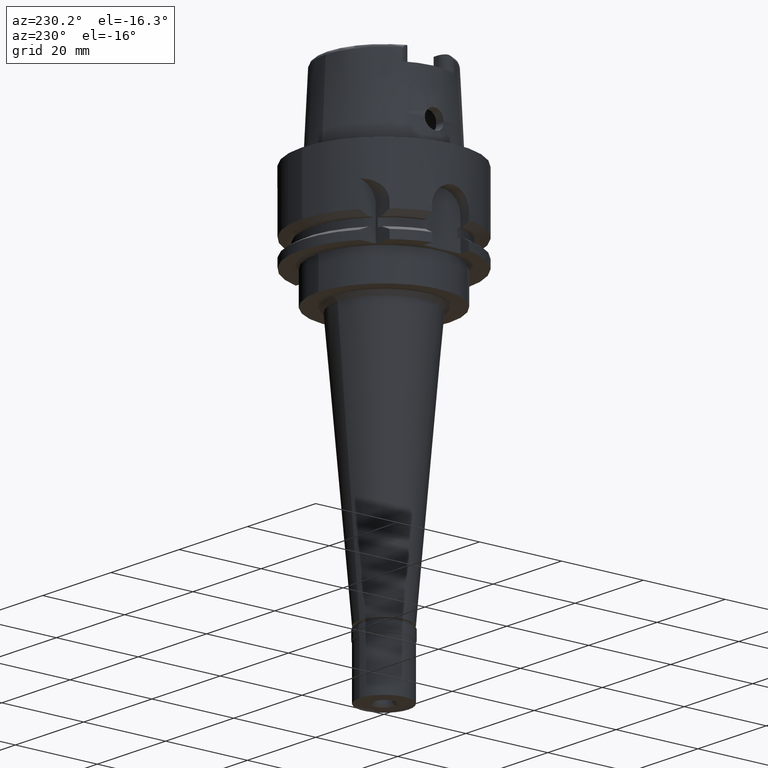
[diagram: clean part render]
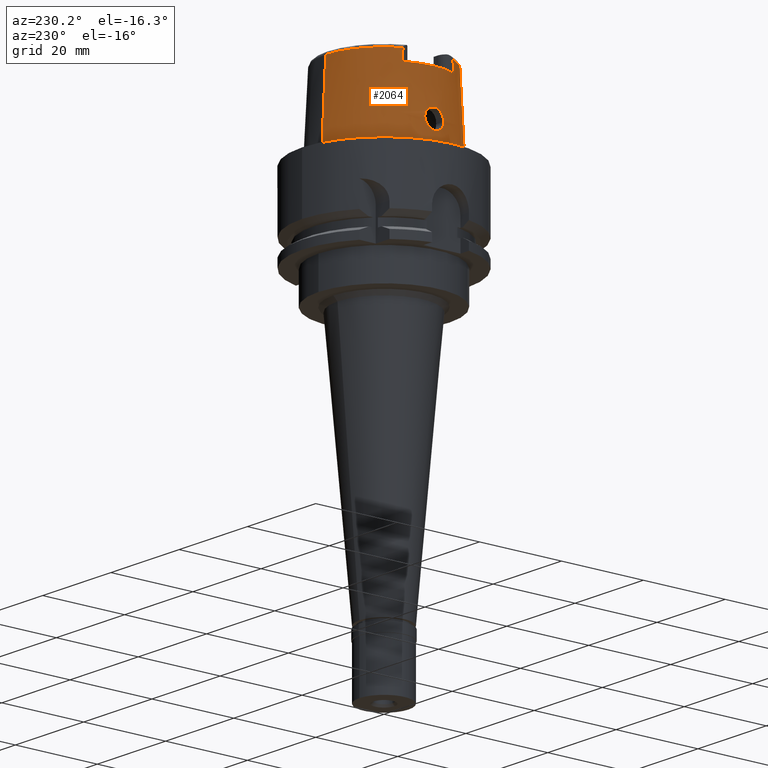
[diagram: same view with one face highlighted and labeled with its STEP entity id]
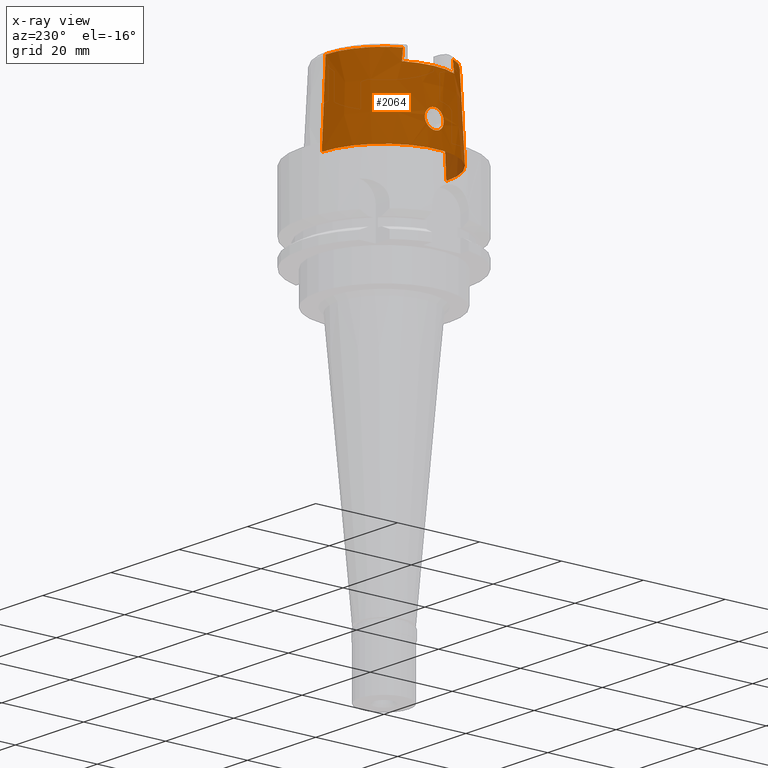
[diagram: x-ray of the same camera — body ghosted, the highlighted face saturated]
A machine part, auxiliary view. The second image highlights one B-rep face of the part: STEP entity #2064.
The next image is the same camera in x-ray: the body ghosted, the highlighted face saturated — about 3% of this face is hidden behind the body in this view.
In plain terms, the highlighted conical surface has half-angle 2.862 deg.
Its self-contained STEP definition (entity closure, byte-faithful):
#2 = CARTESIAN_POINT ( 'NONE',  ( -14.96041458189863427, -1.107509690461690566, 3.978604865375212629 ) ) ;
#11 = CARTESIAN_POINT ( 'NONE',  ( -14.87749218136226759, 1.718132585049722882, 4.470121341656493996 ) ) ;
#25 = CARTESIAN_POINT ( 'NONE',  ( -14.83301012793230456, -1.951767724873916032, 4.780862655706166642 ) ) ;
#34 = CARTESIAN_POINT ( 'NONE',  ( -14.85803083640703903, 1.827167622685256232, 4.601003855080397109 ) ) ;
#50 = CARTESIAN_POINT ( 'NONE',  ( -14.89471404418927136, -1.614094943802227622, 4.361467967923155165 ) ) ;
#80 = CARTESIAN_POINT ( 'NONE',  ( -14.74732491376772714, -1.310495397155849284, 7.890480132683989289 ) ) ;
#196 = FACE_BOUND ( 'NONE', #4268, .T. ) ;
#246 = ORIENTED_EDGE ( 'NONE', *, *, #3690, .T. ) ;
#290 = CARTESIAN_POINT ( 'NONE',  ( -14.70734817586817655, 2.271746088863330737, 6.367127251327319826 ) ) ;
#322 = AXIS2_PLACEMENT_3D ( 'NONE', #1512, #635, #2250 ) ;
#332 = CARTESIAN_POINT ( 'NONE',  ( -14.78499286951999991, 0.0000000000000000000, 8.300000000000000711 ) ) ;
#339 = CARTESIAN_POINT ( 'NONE',  ( -14.74565403954151321, 1.343146336800612906, 7.868597956633664126 ) ) ;
#365 = CARTESIAN_POINT ( 'NONE',  ( -14.70377313625557214, 2.103638064280352715, 6.930159001028141752 ) ) ;
#375 = CARTESIAN_POINT ( 'NONE',  ( -15.01500049747999910, 0.0000000000000000000, 3.700000000000000178 ) ) ;
#386 = CARTESIAN_POINT ( 'NONE',  ( -14.78969320921247821, 2.134164216452940188, 5.142463497463646505 ) ) ;
#402 = CARTESIAN_POINT ( 'NONE',  ( -14.80014739650948030, -2.094048331063766977, 5.048515350919305256 ) ) ;
#412 = CARTESIAN_POINT ( 'NONE',  ( -14.83975061367414305, 1.919468197011881649, 4.732825426779055711 ) ) ;
#429 = CARTESIAN_POINT ( 'NONE',  ( -14.70267160045466248, -2.191398932926658993, 6.699445077412227612 ) ) ;
#439 = CARTESIAN_POINT ( 'NONE',  ( -15.01500049747999910, 0.0000000000000000000, 3.700000000000000178 ) ) ;
#451 = CARTESIAN_POINT ( 'NONE',  ( -14.98572762005271031, -0.8106357027952464378, 3.847437381246149091 ) ) ;
#453 = CARTESIAN_POINT ( 'NONE',  ( -12.88000032454999833, -6.068407003517999776, 19.23995946240999899 ) ) ;
#459 = CARTESIAN_POINT ( 'NONE',  ( -14.79135050270582497, 2.127983826233955877, 5.127245739479673325 ) ) ;
#474 = CARTESIAN_POINT ( 'NONE',  ( -14.70694486121752576, -2.017265411398730279, 7.114962403468841678 ) ) ;
#488 = CARTESIAN_POINT ( 'NONE',  ( -14.76171650750621289, 2.228155104652778551, 5.424294144519233640 ) ) ;
#503 = VECTOR ( 'NONE', #2454, 1000.000000000000227 ) ;
#610 = VERTEX_POINT ( 'NONE', #1457 ) ;
#611 = CARTESIAN_POINT ( 'NONE',  ( -14.74046648004080495, -1.432591898888917026, 7.799749872950078711 ) ) ;
#620 = EDGE_CURVE ( 'NONE', #2635, #4096, #2295, .T. ) ;
#635 = DIRECTION ( 'NONE',  ( 0.0000000000000000000, 0.0000000000000000000, -1.000000000000000000 ) ) ;
#651 = EDGE_CURVE ( 'NONE', #610, #4196, #1980, .T. ) ;
#654 = CARTESIAN_POINT ( 'NONE',  ( -14.75366952680941957, 1.189841423261309483, 7.968425253464887170 ) ) ;
#676 = CARTESIAN_POINT ( 'NONE',  ( -14.78353173346225091, 0.2845707569074571452, 8.287307448897021089 ) ) ;
#702 = CARTESIAN_POINT ( 'NONE',  ( -14.75793439841027421, 1.102470479435829098, 8.018906386280052700 ) ) ;
#726 = CARTESIAN_POINT ( 'NONE',  ( -14.75091137393725838, 1.243840224947330375, 7.934678171664716118 ) ) ;
#754 = CARTESIAN_POINT ( 'NONE',  ( -14.77914832528898970, 0.5068056629556110249, 8.244735394286548669 ) ) ;
#770 = CARTESIAN_POINT ( 'NONE',  ( -14.71594267452836213, -1.850388315337426537, 7.368495586159012234 ) ) ;
#792 = CARTESIAN_POINT ( 'NONE',  ( -14.71400828171622699, -2.299910476099414680, 6.147207761000280435 ) ) ;
#799 = CIRCLE ( 'NONE', #3765, 14.37497927185999735 ) ;
#818 = CARTESIAN_POINT ( 'NONE',  ( -15.00008664332447417, -0.5828852713583345668, 3.773779262075685814 ) ) ;
#827 = CARTESIAN_POINT ( 'NONE',  ( -14.91244066801042756, 1.505351153533456943, 4.252588956376068374 ) ) ;
#846 = CARTESIAN_POINT ( 'NONE',  ( -14.70331073654289078, -2.224356948014384550, 6.589955054231509735 ) ) ;
#856 = CARTESIAN_POINT ( 'NONE',  ( -14.92964374882900813, 1.377727250135973192, 4.152099788044859352 ) ) ;
#870 = CARTESIAN_POINT ( 'NONE',  ( -14.73129486707547819, -2.293685854544455172, 5.825903656302723554 ) ) ;
#989 = CONICAL_SURFACE ( 'NONE', #4213, 14.71899189528999941, 0.04996004983832824653 ) ;
#994 = ORIENTED_EDGE ( 'NONE', *, *, #3859, .T. ) ;
#1008 = CARTESIAN_POINT ( 'NONE',  ( -12.87999878070000115, 6.104119118174000214, 18.93561176231999710 ) ) ;
#1055 = AXIS2_PLACEMENT_3D ( 'NONE', #3144, #4756, #1133 ) ;
#1078 = CARTESIAN_POINT ( 'NONE',  ( -14.78499286951999991, 0.0000000000000000000, 8.300000000000000711 ) ) ;
#1121 = CARTESIAN_POINT ( 'NONE',  ( -12.88000032454999833, -6.068407003517999776, 19.23995946240999899 ) ) ;
#1125 = ORIENTED_EDGE ( 'NONE', *, *, #1500, .T. ) ;
#1131 = CARTESIAN_POINT ( 'NONE',  ( -14.76521407157798649, 0.9395172586667652759, 8.100284803169182979 ) ) ;
#1133 = DIRECTION ( 'NONE',  ( -0.9046226299953515904, 0.4262134410131772633, 0.0000000000000000000 ) ) ;
#1138 = VERTEX_POINT ( 'NONE', #332 ) ;
#1153 = CARTESIAN_POINT ( 'NONE',  ( -14.72979950944817062, 1.616197659087381222, 7.636457819681862880 ) ) ;
#1161 = B_SPLINE_CURVE_WITH_KNOTS ( 'NONE', 3,
 ( #453, #1193, #4058, #3582, #3979, #4897 ),
 .UNSPECIFIED., .F., .F.,
 ( 4, 1, 1, 4 ),
 ( 0.0000000000000000000, 0.3333333333333000081, 0.6666666666667000474, 1.000000000000000000 ),
 .UNSPECIFIED. ) ;
#1167 = CARTESIAN_POINT ( 'NONE',  ( -14.77564413966109136, -2.187241177542518678, 5.269974566528444093 ) ) ;
#1175 = CARTESIAN_POINT ( 'NONE',  ( -14.89145928255392981, 1.634413554206751940, 4.381726946578535120 ) ) ;
#1191 = CARTESIAN_POINT ( 'NONE',  ( -14.70294728682568852, -2.139558203558785898, 6.844028325287411896 ) ) ;
#1193 = CARTESIAN_POINT ( 'NONE',  ( -12.88000032454999833, -6.104114244044999360, 18.93559193275999775 ) ) ;
#1199 = CARTESIAN_POINT ( 'NONE',  ( -14.97171639177669356, 0.9837343504852352760, 3.920511706067889790 ) ) ;
#1212 = CARTESIAN_POINT ( 'NONE',  ( -14.73220638905807256, -1.575666890426938860, 7.677185280820459923 ) ) ;
#1222 = CARTESIAN_POINT ( 'NONE',  ( -14.97944105019504590, 0.8921053119506339169, 3.880043381326412799 ) ) ;
#1238 = CARTESIAN_POINT ( 'NONE',  ( -15.00363756098055390, -0.5094711109940143201, 3.755892624586468553 ) ) ;
#1268 = CIRCLE ( 'NONE', #4243, 15.20000663301000010 ) ;
#1269 = CARTESIAN_POINT ( 'NONE',  ( -14.91755486759836558, -1.459623245128766067, 4.222021991542344921 ) ) ;
#1304 = DIRECTION ( 'NONE',  ( -0.8960012919965021361, -0.4440514437997010733, 0.0000000000000000000 ) ) ;
#1322 = ORIENTED_EDGE ( 'NONE', *, *, #651, .T. ) ;
#1411 = CARTESIAN_POINT ( 'NONE',  ( 0.0000000000000000000, 1.342457523729000028E-14, 9.619975707600000092 ) ) ;
#1457 = CARTESIAN_POINT ( 'NONE',  ( -12.87999878070000115, 6.068418751391000399, 19.23992119332000073 ) ) ;
#1480 = CARTESIAN_POINT ( 'NONE',  ( -14.72147471989114287, 1.749017143146367470, 7.503194191427275506 ) ) ;
#1500 = EDGE_CURVE ( 'NONE', #2883, #2108, #799, .T. ) ;
#1505 = CARTESIAN_POINT ( 'NONE',  ( -14.74231844505367839, 1.403794281513517372, 7.823475259164830220 ) ) ;
#1512 = CARTESIAN_POINT ( 'NONE',  ( 0.0000000000000000000, 1.459778984583999657E-14, 19.23995141520000018 ) ) ;
#1552 = CARTESIAN_POINT ( 'NONE',  ( -14.73063455539219824, 1.602713651642534209, 7.649666032770297441 ) ) ;
#1565 = CARTESIAN_POINT ( 'NONE',  ( -14.89865944144242960, -1.588802405716379873, 4.336921251810212929 ) ) ;
#1590 = CARTESIAN_POINT ( 'NONE',  ( -14.89617027102329949, -1.604831706992151830, 4.352383782756638730 ) ) ;
#1601 = CARTESIAN_POINT ( 'NONE',  ( -14.84941369911242148, 1.872251541918431128, 4.661939501114270357 ) ) ;
#1617 = CARTESIAN_POINT ( 'NONE',  ( -14.79621642476081789, -2.109491097295356887, 5.083261890887698975 ) ) ;
#1627 = CARTESIAN_POINT ( 'NONE',  ( -14.95163221181676150, 1.187373214480714756, 4.028741076922795372 ) ) ;
#1639 = CARTESIAN_POINT ( 'NONE',  ( -14.72909785634215574, -2.296099598332077552, 5.861536109627839330 ) ) ;
#1649 = CARTESIAN_POINT ( 'NONE',  ( -14.95832567310598371, 1.124067758714641929, 3.992156438771673699 ) ) ;
#1669 = CARTESIAN_POINT ( 'NONE',  ( -14.70427625198845334, -2.078326858682897793, 6.992715896416512145 ) ) ;
#1747 = VERTEX_POINT ( 'NONE', #2943 ) ;
#1749 = CARTESIAN_POINT ( 'NONE',  ( -14.75232085644765512, -1.220180263135357102, 7.951003177243207709 ) ) ;
#1773 = DIRECTION ( 'NONE',  ( 0.0000000000000000000, -1.000000000000000000, 0.0000000000000000000 ) ) ;
#1843 = VERTEX_POINT ( 'NONE', #1121 ) ;
#1873 = CARTESIAN_POINT ( 'NONE',  ( -14.76255221631768855, 1.002229533695717878, 8.071529044002877740 ) ) ;
#1893 = CARTESIAN_POINT ( 'NONE',  ( -14.71330285441949570, 2.292988571698261868, 6.183209826586463898 ) ) ;
#1948 = CARTESIAN_POINT ( 'NONE',  ( -14.73480897677178802, 1.534044326706455186, 7.714410271509759554 ) ) ;
#1976 = EDGE_CURVE ( 'NONE', #3533, #1138, #2803, .T. ) ;
#1980 = CIRCLE ( 'NONE', #1055, 14.23797715756000670 ) ;
#1987 = CARTESIAN_POINT ( 'NONE',  ( -14.70881423316103032, -2.285912213332098819, 6.295257651735497006 ) ) ;
#1999 = CARTESIAN_POINT ( 'NONE',  ( -14.79071581526791235, 2.130359082076787036, 5.133053670990284090 ) ) ;
#2014 = CARTESIAN_POINT ( 'NONE',  ( -14.73834166373888088, -2.283790448478240087, 5.718009694592332437 ) ) ;
#2024 = CARTESIAN_POINT ( 'NONE',  ( -14.71787489719134534, 2.299122695560352092, 6.073328799129370736 ) ) ;
#2046 = CARTESIAN_POINT ( 'NONE',  ( -14.71338817162959600, -1.895836719884105737, 7.304388115873780229 ) ) ;
#2056 = CARTESIAN_POINT ( 'NONE',  ( -14.97820495300442012, 0.9072783066818363995, 3.886492482413884897 ) ) ;
#2064 = ADVANCED_FACE ( 'NONE', ( #3817, #196 ), #989, .T. ) ;
#2070 = CARTESIAN_POINT ( 'NONE',  ( -15.01500049748000443, -0.1431464747803790905, 3.700000000000000178 ) ) ;
#2096 = CARTESIAN_POINT ( 'NONE',  ( -14.99023284682885482, -0.7471964444152333629, 3.824155850300016812 ) ) ;
#2108 = VERTEX_POINT ( 'NONE', #4520 ) ;
#2124 = CARTESIAN_POINT ( 'NONE',  ( -14.76599303090443804, -0.9194935838926336924, 8.108596405372136218 ) ) ;
#2250 = DIRECTION ( 'NONE',  ( -0.001485959642573941343, -0.9999988959613608230, 0.0000000000000000000 ) ) ;
#2269 = CARTESIAN_POINT ( 'NONE',  ( -14.70739681537069288, 2.007619751714770029, 7.124468897007064427 ) ) ;
#2293 = CARTESIAN_POINT ( 'NONE',  ( -14.70328638622466855, 2.122671926936438691, 6.885639201470262982 ) ) ;
#2295 = LINE ( 'NONE', #3913, #4212 ) ;
#2300 = EDGE_CURVE ( 'NONE', #2635, #1843, #4298, .T. ) ;
#2314 = CARTESIAN_POINT ( 'NONE',  ( -14.75629095327162865, 1.136906501859037411, 7.999781480556785951 ) ) ;
#2325 = ORIENTED_EDGE ( 'NONE', *, *, #4524, .T. ) ;
#2366 = CARTESIAN_POINT ( 'NONE',  ( -14.70914376910226551, 1.971110746713771844, 7.187593058879012453 ) ) ;
#2377 = CARTESIAN_POINT ( 'NONE',  ( -14.93061062144148998, -1.362460116016066536, 4.145134587798190218 ) ) ;
#2403 = CARTESIAN_POINT ( 'NONE',  ( -14.72715224085879804, -1.659772000727425700, 7.592255641648031350 ) ) ;
#2414 = CARTESIAN_POINT ( 'NONE',  ( -14.71473684744785615, 2.295620688937709541, 6.146519399888251911 ) ) ;
#2428 = CARTESIAN_POINT ( 'NONE',  ( -14.70277634268941291, -2.150115788262865202, 6.817099734417756629 ) ) ;
#2439 = CARTESIAN_POINT ( 'NONE',  ( -14.77782189591748896, 2.176783564312177344, 5.255414636513733306 ) ) ;
#2454 = DIRECTION ( 'NONE',  ( 0.0000000000000000000, 0.04993926899656212642, -0.9987522562738413434 ) ) ;
#2458 = B_SPLINE_CURVE_WITH_KNOTS ( 'NONE', 3,
 ( #2947, #4638, #3051, #2494, #1008, #2893 ),
 .UNSPECIFIED., .F., .F.,
 ( 4, 1, 1, 4 ),
 ( 0.0000000000000000000, 0.3333333333333000081, 0.6666666666667000474, 1.000000000000000000 ),
 .UNSPECIFIED. ) ;
#2459 = CARTESIAN_POINT ( 'NONE',  ( -14.98146273356237934, -0.8667961342741733466, 3.869572481058396018 ) ) ;
#2483 = CARTESIAN_POINT ( 'NONE',  ( -14.70255555743105980, -2.173498833981903466, 6.753979766132429674 ) ) ;
#2494 = CARTESIAN_POINT ( 'NONE',  ( -12.88000052917000104, 6.174983818887999298, 18.32681562252000163 ) ) ;
#2507 = LINE ( 'NONE', #2930, #503 ) ;
#2520 = DIRECTION ( 'NONE',  ( 0.0000000000000000000, 0.0000000000000000000, 1.000000000000000000 ) ) ;
#2560 = ORIENTED_EDGE ( 'NONE', *, *, #4907, .T. ) ;
#2609 = CARTESIAN_POINT ( 'NONE',  ( 0.0000000000000000000, 14.23797715755999782, 19.23995141520000018 ) ) ;
#2618 = CARTESIAN_POINT ( 'NONE',  ( -14.78499286951999991, 0.0000000000000000000, 8.300000000000000711 ) ) ;
#2635 = VERTEX_POINT ( 'NONE', #3042 ) ;
#2662 = CARTESIAN_POINT ( 'NONE',  ( -14.77732190521679456, 0.5816026469436970103, 8.226627217148395843 ) ) ;
#2687 = CARTESIAN_POINT ( 'NONE',  ( -14.70334933095115559, 2.120024536113907399, 6.891944366616099771 ) ) ;
#2716 = CARTESIAN_POINT ( 'NONE',  ( -14.77403434908685398, 0.6941598961004270540, 8.193097042863200841 ) ) ;
#2760 = ORIENTED_EDGE ( 'NONE', *, *, #2300, .T. ) ;
#2763 = CARTESIAN_POINT ( 'NONE',  ( -14.72943248936429228, 1.622093092273936277, 7.630621332095622655 ) ) ;
#2778 = CARTESIAN_POINT ( 'NONE',  ( -14.76138692316663281, -2.231350359771047120, 5.422168737230678381 ) ) ;
#2792 = CARTESIAN_POINT ( 'NONE',  ( -14.73767527269292721, 2.287789177818445818, 5.719825348901813378 ) ) ;
#2803 = B_SPLINE_CURVE_WITH_KNOTS ( 'NONE', 3,
 ( #375, #2070, #4863, #1238, #818, #5190, #2096, #451, #3997, #4420, #2459, #3681, #2, #4792, #2377, #1269, #3653, #2830, #2805, #1565, #1590, #50, #3176, #3288, #25, #2852, #2886, #4464, #402, #1617, #4494, #1167, #2778, #3201, #2014, #870, #1639, #4440, #4818, #792, #1987, #4399, #846, #429, #2483, #2428, #1191, #4054, #4107, #1669, #474, #2046, #770, #3604, #4084, #5216, #3232, #2403, #3627, #4839, #1212, #3259, #611, #3763, #4607, #80, #1749, #3314, #3416, #3365, #3789, #2124, #4170, #3021, #2618 ),
 .UNSPECIFIED., .F., .F.,
 ( 4, 2, 2, 1, 1, 2, 2, 2, 2, 2, 1, 2, 2, 2, 2, 1, 2, 2, 2, 2, 2, 2, 2, 2, 1, 1, 2, 2, 2, 2, 2, 1, 2, 2, 2, 2, 2, 2, 2, 2, 4 ),
 ( 0.0000000000000000000, 0.06249999999999888978, 0.09374999999999830691, 0.1093749999999979877, 0.1171874999999978073, 0.1210937499999977240, 0.1249999999999976408, 0.1874999999999971134, 0.2187499999999969191, 0.2343749999999968359, 0.2421874999999968081, 0.2460937499999968081, 0.2499999999999968359, 0.3124999999999976130, 0.3437499999999980571, 0.3593749999999982792, 0.3671874999999983347, 0.3749999999999984457, 0.4374999999999989453, 0.4687499999999990008, 0.4843749999999992228, 0.4999999999999994449, 0.5625000000000003331, 0.5937500000000006661, 0.6093750000000008882, 0.6171875000000008882, 0.6210937500000009992, 0.6250000000000009992, 0.6875000000000017764, 0.7187500000000019984, 0.7343750000000019984, 0.7421875000000021094, 0.7460937500000022204, 0.7500000000000022204, 0.7812500000000019984, 0.7968750000000017764, 0.8125000000000016653, 0.8437500000000012212, 0.8593750000000009992, 0.8750000000000008882, 1.000000000000000000 ),
 .UNSPECIFIED. ) ;
#2805 = CARTESIAN_POINT ( 'NONE',  ( -14.90235963870200386, -1.564714987790609024, 4.314022640419379329 ) ) ;
#2816 = CARTESIAN_POINT ( 'NONE',  ( -14.97993164273628430, 0.8860210621168660428, 3.877486852363914771 ) ) ;
#2830 = CARTESIAN_POINT ( 'NONE',  ( -14.90595916085415773, -1.540520483624324477, 4.292000524913938797 ) ) ;
#2839 = CARTESIAN_POINT ( 'NONE',  ( -14.83587665392790811, 1.938143036937287400, 4.761565722162855785 ) ) ;
#2852 = CARTESIAN_POINT ( 'NONE',  ( -14.82452622512353102, -1.990827122709138530, 4.845724523368849290 ) ) ;
#2883 = VERTEX_POINT ( 'NONE', #4015 ) ;
#2886 = CARTESIAN_POINT ( 'NONE',  ( -14.81217354649724882, -2.044581674084780865, 4.945902326578187846 ) ) ;
#2893 = CARTESIAN_POINT ( 'NONE',  ( -12.87999878070000115, 6.068418751391000399, 19.23992119332000073 ) ) ;
#2930 = CARTESIAN_POINT ( 'NONE',  ( 0.0000000000000000000, 14.23797715755999782, 19.23995141520000018 ) ) ;
#2943 = CARTESIAN_POINT ( 'NONE',  ( 0.0000000000000000000, 15.20000663301000010, 0.0000000000000000000 ) ) ;
#2947 = CARTESIAN_POINT ( 'NONE',  ( -12.88000000001000167, 6.383230300259000067, 16.50000000000000000 ) ) ;
#3021 = CARTESIAN_POINT ( 'NONE',  ( -14.78499286951999814, -0.2787745227115523416, 8.299999999999998934 ) ) ;
#3042 = CARTESIAN_POINT ( 'NONE',  ( 0.0000000000000000000, -14.23797715755999782, 19.23995141520000018 ) ) ;
#3051 = CARTESIAN_POINT ( 'NONE',  ( -12.87999997686000064, 6.279941282731999586, 17.41350820122000087 ) ) ;
#3068 = CARTESIAN_POINT ( 'NONE',  ( -14.76871775440795354, 0.8491092902750403404, 8.137566861855864531 ) ) ;
#3088 = CARTESIAN_POINT ( 'NONE',  ( -14.70351136102681266, 2.113536795484791675, 6.907210560451681580 ) ) ;
#3115 = CARTESIAN_POINT ( 'NONE',  ( -14.70451505592953723, 2.079352116352842561, 6.984029928449741575 ) ) ;
#3142 = CARTESIAN_POINT ( 'NONE',  ( -14.76782309395071557, 0.8725508052176742524, 8.128069715560501507 ) ) ;
#3144 = CARTESIAN_POINT ( 'NONE',  ( 0.0000000000000000000, 1.459778984583999657E-14, 19.23995141520000018 ) ) ;
#3176 = CARTESIAN_POINT ( 'NONE',  ( -14.87658351096698794, -1.728334971503363127, 4.474934948854307315 ) ) ;
#3184 = EDGE_LOOP ( 'NONE', ( #246, #1322, #994, #2325, #3531, #2760, #2560, #1125 ) ) ;
#3187 = CARTESIAN_POINT ( 'NONE',  ( -14.77230374071786123, 2.194977426247659125, 5.311812381054796361 ) ) ;
#3201 = CARTESIAN_POINT ( 'NONE',  ( -14.74364721413238755, -2.273652992476068224, 5.644745979789653312 ) ) ;
#3217 = CARTESIAN_POINT ( 'NONE',  ( -14.88834548727817975, 1.653373131380677652, 4.401110745928278334 ) ) ;
#3232 = CARTESIAN_POINT ( 'NONE',  ( -14.72579392470974113, -1.682458830385888282, 7.568491586785876635 ) ) ;
#3243 = CARTESIAN_POINT ( 'NONE',  ( -14.96741182547979854, 1.030313559727948913, 3.943377771252660313 ) ) ;
#3259 = CARTESIAN_POINT ( 'NONE',  ( -14.73547087690553603, -1.519849736209561764, 7.727927485494568316 ) ) ;
#3269 = CARTESIAN_POINT ( 'NONE',  ( -14.79806440533162970, 2.102760206403382348, 5.066039888107483513 ) ) ;
#3288 = CARTESIAN_POINT ( 'NONE',  ( -14.85920818753235295, -1.825618614641882020, 4.592914665587636946 ) ) ;
#3297 = CARTESIAN_POINT ( 'NONE',  ( -14.97632099348223100, 0.9300969524254406595, 3.896335739924747354 ) ) ;
#3314 = CARTESIAN_POINT ( 'NONE',  ( -14.75552486475408109, -1.156821402165017609, 7.989335911426264758 ) ) ;
#3365 = CARTESIAN_POINT ( 'NONE',  ( -14.76164798603651107, -1.023184110399902425, 8.060236441945345831 ) ) ;
#3404 = CARTESIAN_POINT ( 'NONE',  ( 0.0000000000000000000, 1.342457523729000028E-14, 0.0000000000000000000 ) ) ;
#3416 = CARTESIAN_POINT ( 'NONE',  ( -14.76014094699343460, -1.057169249466100691, 8.042992036017905022 ) ) ;
#3452 = ORIENTED_EDGE ( 'NONE', *, *, #1976, .F. ) ;
#3485 = CARTESIAN_POINT ( 'NONE',  ( -14.75231974888976083, 1.216628373133354923, 7.952079831381655417 ) ) ;
#3513 = CARTESIAN_POINT ( 'NONE',  ( -14.70940597086458190, 2.282399008077008240, 6.293435665718750016 ) ) ;
#3531 = ORIENTED_EDGE ( 'NONE', *, *, #620, .F. ) ;
#3533 = VERTEX_POINT ( 'NONE', #5227 ) ;
#3540 = DIRECTION ( 'NONE',  ( 0.0000000000000000000, -0.04993926899656212642, -0.9987522562738413434 ) ) ;
#3567 = CARTESIAN_POINT ( 'NONE',  ( -14.73188704608172905, 1.582365697598638432, 7.669353863450520059 ) ) ;
#3582 = CARTESIAN_POINT ( 'NONE',  ( -12.87999944956999876, -6.279959759208000314, 17.41350767193000237 ) ) ;
#3590 = CARTESIAN_POINT ( 'NONE',  ( -14.88508676602682357, 1.673067574259026857, 4.421560314296320016 ) ) ;
#3604 = CARTESIAN_POINT ( 'NONE',  ( -14.72038452801862896, -1.773814061183719426, 7.464671617826131644 ) ) ;
#3612 = CARTESIAN_POINT ( 'NONE',  ( 0.0000000000000000000, 1.342457523729000028E-14, 16.50000000000000000 ) ) ;
#3614 = CARTESIAN_POINT ( 'NONE',  ( -14.82190601563289967, 2.002884951515852219, 4.868571315790523713 ) ) ;
#3627 = CARTESIAN_POINT ( 'NONE',  ( -14.72807049535695967, -1.644458350030491456, 7.608066496689016134 ) ) ;
#3639 = CARTESIAN_POINT ( 'NONE',  ( -14.87099813437315987, 1.755200651544483570, 4.513156495612226315 ) ) ;
#3653 = CARTESIAN_POINT ( 'NONE',  ( -14.91302397168192151, -1.492048199859994595, 4.249098963751490210 ) ) ;
#3673 = CARTESIAN_POINT ( 'NONE',  ( 0.0000000000000000000, -15.20000663301000010, 1.136868377215999875E-13 ) ) ;
#3681 = CARTESIAN_POINT ( 'NONE',  ( -14.97209495869000762, -0.9854705087906170391, 3.918311370179329067 ) ) ;
#3690 = EDGE_CURVE ( 'NONE', #2108, #610, #2458, .T. ) ;
#3697 = B_SPLINE_CURVE_WITH_KNOTS ( 'NONE', 3,
 ( #1078, #5131, #676, #754, #2662, #2716, #4754, #5179, #3068, #4363, #3142, #4776, #1131, #1873, #702, #2314, #654, #3485, #726, #5078, #5106, #339, #1505, #4288, #1948, #3567, #1552, #1153, #2763, #1480, #4386, #2366, #2269, #3987, #3115, #365, #3088, #2687, #2293, #3912, #4728, #290, #3513, #1893, #2414, #2024, #4070, #4121, #2792, #4010, #488, #3187, #2439, #4908, #4035, #386, #1999, #459, #3269, #4877, #4448, #3614, #5228, #4803, #2839, #4476, #412, #1601, #34, #3639, #11, #3590, #3217, #4830, #1175, #827, #856, #1627, #1649, #3243, #1199, #3297, #2056, #1222, #2816, #5199, #4430, #439 ),
 .UNSPECIFIED., .F., .F.,
 ( 4, 2, 2, 1, 1, 1, 2, 2, 2, 2, 1, 2, 2, 2, 1, 1, 2, 2, 2, 2, 1, 1, 2, 2, 2, 2, 2, 2, 2, 2, 1, 1, 1, 2, 2, 2, 2, 1, 2, 2, 2, 1, 1, 2, 2, 2, 2, 1, 1, 2, 2, 4 ),
 ( 0.0000000000000000000, 0.06249999999998583078, 0.09374999999997876698, 0.1093749999999753253, 0.1171874999999736044, 0.1210937499999728550, 0.1230468749999725914, 0.1249999999999723277, 0.1562499999999678313, 0.1718749999999656941, 0.1796874999999644729, 0.1835937499999640010, 0.1874999999999635292, 0.2187499999999573952, 0.2343749999999543698, 0.2421874999999527600, 0.2460937499999519273, 0.2499999999999510947, 0.3124999999999383826, 0.3437499999999321654, 0.3593749999999290567, 0.3671874999999276690, 0.3710937499999271139, 0.3749999999999265587, 0.4374999999999212297, 0.4687499999999186207, 0.4843749999999174549, 0.4999999999999162892, 0.5624999999999119593, 0.5937499999999100719, 0.6093749999999089617, 0.6171874999999084066, 0.6210937499999082956, 0.6230468749999084066, 0.6249999999999085176, 0.6562499999999136246, 0.6718749999999161782, 0.6796874999999173994, 0.6835937499999181766, 0.6874999999999189537, 0.7187499999999280575, 0.7343749999999327205, 0.7421874999999350520, 0.7460937499999360512, 0.7499999999999370504, 0.8124999999999529265, 0.8437499999999606981, 0.8593749999999645839, 0.8671874999999665823, 0.8710937499999675815, 0.8749999999999685807, 1.000000000000000000 ),
 .UNSPECIFIED. ) ;
#3763 = CARTESIAN_POINT ( 'NONE',  ( -14.74214815964657355, -1.402917648813881701, 7.822975925401079778 ) ) ;
#3765 = AXIS2_PLACEMENT_3D ( 'NONE', #3612, #4826, #1304 ) ;
#3773 = DIRECTION ( 'NONE',  ( 0.0000000000000000000, 1.000000000000000000, 0.0000000000000000000 ) ) ;
#3789 = CARTESIAN_POINT ( 'NONE',  ( -14.76459875404921895, -0.9537121449822165697, 8.093301952659446741 ) ) ;
#3817 = FACE_OUTER_BOUND ( 'NONE', #3184, .T. ) ;
#3859 = EDGE_CURVE ( 'NONE', #4196, #1747, #2507, .T. ) ;
#3912 = CARTESIAN_POINT ( 'NONE',  ( -14.70192034724809105, 2.185132311457279375, 6.734152814588163061 ) ) ;
#3913 = CARTESIAN_POINT ( 'NONE',  ( 0.0000000000000000000, -14.23797715755999782, 19.23995141520000018 ) ) ;
#3979 = CARTESIAN_POINT ( 'NONE',  ( -12.88000127221999946, -6.348934803475999367, 16.80451756411999753 ) ) ;
#3987 = CARTESIAN_POINT ( 'NONE',  ( -14.70537574846183304, 2.056432282565395120, 7.030693023734889024 ) ) ;
#3997 = CARTESIAN_POINT ( 'NONE',  ( -14.98369693901814159, -0.8377304625691037732, 3.857967835170053039 ) ) ;
#4010 = CARTESIAN_POINT ( 'NONE',  ( -14.75525712161527814, 2.245991113962818364, 5.498858098623401247 ) ) ;
#4015 = CARTESIAN_POINT ( 'NONE',  ( -12.88000127221999946, -6.383224527686000904, 16.50000000000000000 ) ) ;
#4035 = CARTESIAN_POINT ( 'NONE',  ( -14.78816631696038719, 2.139818128285896570, 5.156579638036904889 ) ) ;
#4054 = CARTESIAN_POINT ( 'NONE',  ( -14.70307821000157311, -2.132400588904022953, 6.861951767064111252 ) ) ;
#4058 = CARTESIAN_POINT ( 'NONE',  ( -12.88000001816999962, -6.175000825609000543, 18.32682659859000296 ) ) ;
#4070 = CARTESIAN_POINT ( 'NONE',  ( -14.71968527347825884, 2.299993020088375140, 6.034726435144830425 ) ) ;
#4084 = CARTESIAN_POINT ( 'NONE',  ( -14.72196682903907039, -1.746890256165588795, 7.496729521511496408 ) ) ;
#4096 = VERTEX_POINT ( 'NONE', #3673 ) ;
#4107 = CARTESIAN_POINT ( 'NONE',  ( -14.70316946891856702, -2.127985195361272730, 6.872775640363100180 ) ) ;
#4121 = CARTESIAN_POINT ( 'NONE',  ( -14.72834911841198746, 2.300027684202635481, 5.863421319558237421 ) ) ;
#4170 = CARTESIAN_POINT ( 'NONE',  ( -14.77914676533059612, -0.5821426005853300722, 8.248673852059573264 ) ) ;
#4196 = VERTEX_POINT ( 'NONE', #2609 ) ;
#4212 = VECTOR ( 'NONE', #3540, 1000.000000000000227 ) ;
#4213 = AXIS2_PLACEMENT_3D ( 'NONE', #1411, #4977, #1773 ) ;
#4243 = AXIS2_PLACEMENT_3D ( 'NONE', #3404, #2520, #3773 ) ;
#4268 = EDGE_LOOP ( 'NONE', ( #5139, #3452 ) ) ;
#4288 = CARTESIAN_POINT ( 'NONE',  ( -14.73731255007377250, 1.491218582350361421, 7.751482869186007818 ) ) ;
#4298 = CIRCLE ( 'NONE', #322, 14.23797715756000315 ) ;
#4363 = CARTESIAN_POINT ( 'NONE',  ( -14.76818267040242816, 0.8631755327544252676, 8.131889683268314073 ) ) ;
#4370 = EDGE_CURVE ( 'NONE', #1138, #3533, #3697, .T. ) ;
#4386 = CARTESIAN_POINT ( 'NONE',  ( -14.71558335767399051, 1.848435285819300500, 7.376919166607344813 ) ) ;
#4399 = CARTESIAN_POINT ( 'NONE',  ( -14.70427956065640451, -2.242536860413745892, 6.516402325399452522 ) ) ;
#4420 = CARTESIAN_POINT ( 'NONE',  ( -14.98232095842640810, -0.8557710823784367982, 3.865111249351115941 ) ) ;
#4430 = CARTESIAN_POINT ( 'NONE',  ( -15.01500049747999554, 0.2873172036148453623, 3.700000000000001510 ) ) ;
#4440 = CARTESIAN_POINT ( 'NONE',  ( -14.72500767785112963, -2.299266974624958326, 5.932051535729582881 ) ) ;
#4448 = CARTESIAN_POINT ( 'NONE',  ( -14.81758350614677333, 2.021897093716837901, 4.903025282996892109 ) ) ;
#4464 = CARTESIAN_POINT ( 'NONE',  ( -14.80609050108083125, -2.070250910389811239, 4.996711838134741512 ) ) ;
#4476 = CARTESIAN_POINT ( 'NONE',  ( -14.83832866514534921, 1.926364138757280742, 4.743322198389571476 ) ) ;
#4494 = CARTESIAN_POINT ( 'NONE',  ( -14.79441809499794580, -2.116429539527156400, 5.099362852509641719 ) ) ;
#4520 = CARTESIAN_POINT ( 'NONE',  ( -12.88000000001000167, 6.383230300259000067, 16.50000000000000000 ) ) ;
#4524 = EDGE_CURVE ( 'NONE', #1747, #4096, #1268, .T. ) ;
#4607 = CARTESIAN_POINT ( 'NONE',  ( -14.74554447597945384, -1.342464160807625317, 7.867942485970181643 ) ) ;
#4638 = CARTESIAN_POINT ( 'NONE',  ( -12.87999970122000093, 6.348941909170999764, 16.80451821834000015 ) ) ;
#4728 = CARTESIAN_POINT ( 'NONE',  ( -14.70279517299961647, 2.228685412431929525, 6.587717769124838085 ) ) ;
#4754 = CARTESIAN_POINT ( 'NONE',  ( -14.77225358951645973, 0.7505271162003552821, 8.174740936270389113 ) ) ;
#4756 = DIRECTION ( 'NONE',  ( 0.0000000000000000000, 0.0000000000000000000, -1.000000000000000000 ) ) ;
#4776 = CARTESIAN_POINT ( 'NONE',  ( -14.76759955965501980, 0.8783229336327582626, 8.125691420550554156 ) ) ;
#4792 = CARTESIAN_POINT ( 'NONE',  ( -14.93859854546198029, -1.297847934237525536, 4.099672464867381905 ) ) ;
#4803 = CARTESIAN_POINT ( 'NONE',  ( -14.83224225057289836, 1.955451101725856455, 4.788798269821678666 ) ) ;
#4818 = CARTESIAN_POINT ( 'NONE',  ( -14.72321450935036502, -2.300021844214574784, 5.964954867364449242 ) ) ;
#4826 = DIRECTION ( 'NONE',  ( 0.0000000000000000000, 0.0000000000000000000, -1.000000000000000000 ) ) ;
#4830 = CARTESIAN_POINT ( 'NONE',  ( -14.89051883461293002, 1.640159865891097413, 4.387559249870659706 ) ) ;
#4839 = CARTESIAN_POINT ( 'NONE',  ( -14.72860799375271590, -1.635509321973255714, 7.617157368613293400 ) ) ;
#4863 = CARTESIAN_POINT ( 'NONE',  ( -15.01215976335513780, -0.2894639173472576821, 3.713403065285555638 ) ) ;
#4877 = CARTESIAN_POINT ( 'NONE',  ( -14.80531379322688501, 2.074197616783521880, 5.003310582062732159 ) ) ;
#4897 = CARTESIAN_POINT ( 'NONE',  ( -12.88000127221999946, -6.383224527686000904, 16.50000000000000000 ) ) ;
#4907 = EDGE_CURVE ( 'NONE', #1843, #2883, #1161, .T. ) ;
#4908 = CARTESIAN_POINT ( 'NONE',  ( -14.78465268618955974, 2.152635627135181640, 5.189523971677530767 ) ) ;
#4977 = DIRECTION ( 'NONE',  ( 0.0000000000000000000, 0.0000000000000000000, -1.000000000000000000 ) ) ;
#5078 = CARTESIAN_POINT ( 'NONE',  ( -14.74995943573939883, 1.262069338190078049, 7.922836217339747300 ) ) ;
#5106 = CARTESIAN_POINT ( 'NONE',  ( -14.74940470590422947, 1.272587056281729634, 7.915883935164566232 ) ) ;
#5131 = CARTESIAN_POINT ( 'NONE',  ( -14.78499286952000347, 0.1393640182989804022, 8.300000000000004263 ) ) ;
#5139 = ORIENTED_EDGE ( 'NONE', *, *, #4370, .F. ) ;
#5179 = CARTESIAN_POINT ( 'NONE',  ( -14.76993631904986515, 0.8162677349560669704, 8.150445497198518296 ) ) ;
#5190 = CARTESIAN_POINT ( 'NONE',  ( -14.99369499154353136, -0.6925094709296679696, 3.806399276063348491 ) ) ;
#5199 = CARTESIAN_POINT ( 'NONE',  ( -15.00354944286980619, 0.5880758008807914772, 3.754595697690515710 ) ) ;
#5216 = CARTESIAN_POINT ( 'NONE',  ( -14.72449280535526484, -1.704302806315810326, 7.544606147630077864 ) ) ;
#5227 = CARTESIAN_POINT ( 'NONE',  ( -15.01500049747999910, 0.0000000000000000000, 3.700000000000000178 ) ) ;
#5228 = CARTESIAN_POINT ( 'NONE',  ( -14.82873868763135583, 1.971705917393435703, 4.815603307826777701 ) ) ;